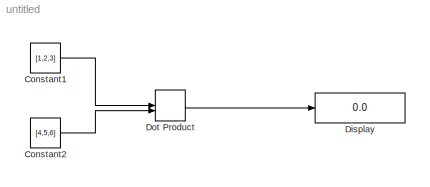
MODEL untitled
KIND model
BLOCK [Constant] Constant1
  OutDataType = fixdt(1, 16)
  OutScaling = 2^0
  Value = [1,2,3]
BLOCK [Constant] Constant2
  OutDataType = fixdt(1, 16)
  OutScaling = 2^0
  Value = [4,5,6]
BLOCK [Display] Display
  Decimation = 1
  Lockdown = off
  Ports = [1]
BLOCK [DotProduct] Dot Product
  OutDataType = fixdt(1, 16)
  OutDataTypeStr = Inherit: Inherit via internal rule
  OutScaling = 2^-10
  OutputDataTypeScalingMode = Inherit via internal rule
LINE Constant1:1 -> Dot Product:1
LINE Constant2:1 -> Dot Product:2
LINE Dot Product:1 -> Display:1
